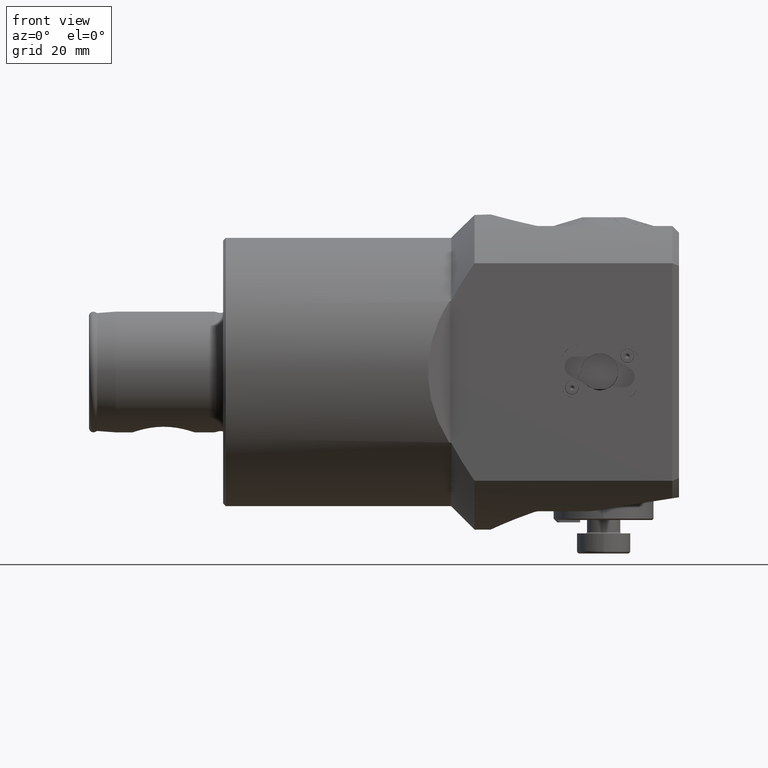
[diagram: clean part render]
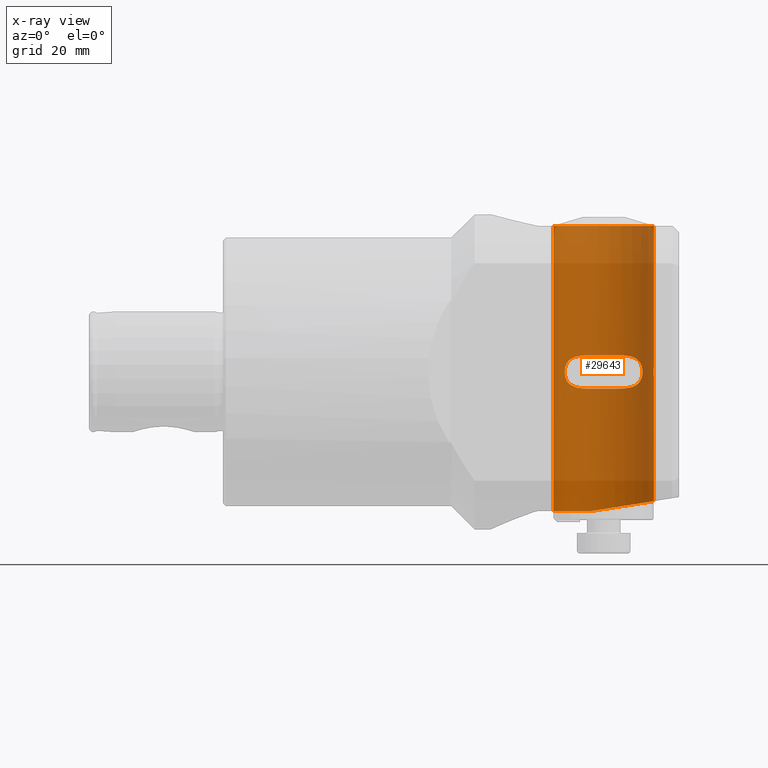
[diagram: x-ray — body ghosted, one internal face saturated and labeled with its STEP entity id]
A machine part, front view, then the same camera in x-ray: the body is ghosted and one INTERNAL B-rep face — a face not visible from any outside direction — is saturated and labeled: STEP entity #29643.
In plain terms, the highlighted cylindrical surface (partial cylindrical patch) has radius 15 mm, axis along (-0, 0, 1).
Its self-contained STEP definition (entity closure, byte-faithful):
#349 = CARTESIAN_POINT ( 'NONE',  ( -14.20858694209766800, 12.50240507956487300, 4.586087235399561200 ) ) ;
#426 = CARTESIAN_POINT ( 'NONE',  ( -7.568342937873500100, 1.431515160987078900, 0.8275730650745876100 ) ) ;
#461 = CARTESIAN_POINT ( 'NONE',  ( -7.499999999999971600, 10.78758098744011400, -38.54363547187132600 ) ) ;
#579 = CARTESIAN_POINT ( 'NONE',  ( -26.48143859313935900, 14.46195514890917100, -41.54999999999999000 ) ) ;
#601 = EDGE_CURVE ( 'NONE', #13997, #6951, #6536, .T. ) ;
#635 = CARTESIAN_POINT ( 'NONE',  ( -29.31928001201113800, 13.36253664295546700, 4.870143562531006300 ) ) ;
#754 = CARTESIAN_POINT ( 'NONE',  ( -34.03309213892777800, 9.591143784820163300, -0.9822619822595830600 ) ) ;
#879 = CARTESIAN_POINT ( 'NONE',  ( -33.16700874164254000, 10.54759067274875200, 3.069510118688215900 ) ) ;
#1105 = CARTESIAN_POINT ( 'NONE',  ( -33.86870272020120600, 9.785752174759604600, 1.683194300325357600 ) ) ;
#2072 = CARTESIAN_POINT ( 'NONE',  ( -16.79772104262010000, 13.88258092550121800, -4.964733818639690100 ) ) ;
#2203 = CARTESIAN_POINT ( 'NONE',  ( -11.01432286039371900, 9.648197494095718700, -1.231945338293130500 ) ) ;
#2250 = CARTESIAN_POINT ( 'NONE',  ( -23.79445612596623500, 14.95794725794611500, 4.979682208011131400 ) ) ;
#2477 = CARTESIAN_POINT ( 'NONE',  ( -18.65942712606566200, 14.50000000000000000, 4.999999999999992000 ) ) ;
#2518 = CARTESIAN_POINT ( 'NONE',  ( -7.500750018750931500, 0.1500000000000022100, 43.55999999998300600 ) ) ;
#2850 = EDGE_CURVE ( 'NONE', #27032, #28673, #23784, .T. ) ;
#2992 = VERTEX_POINT ( 'NONE', #15010 ) ;
#3170 = CARTESIAN_POINT ( 'NONE',  ( -7.591017118191937900, 1.649918009079039500, 0.1102789240595022800 ) ) ;
#3339 = DIRECTION ( 'NONE',  ( -1.415537577249354700E-016, 0.0000000000000000000, 1.000000000000000000 ) ) ;
#3378 = CARTESIAN_POINT ( 'NONE',  ( -31.74940754962025100, 11.81112796991802800, 4.218618333483589400 ) ) ;
#3506 = CARTESIAN_POINT ( 'NONE',  ( -33.61920456786271700, 10.06880340606725500, -2.327889085177186500 ) ) ;
#3577 = CARTESIAN_POINT ( 'NONE',  ( -16.79333560442295000, 13.88082934743036600, 4.964536755608256700 ) ) ;
#3732 = CARTESIAN_POINT ( 'NONE',  ( -32.27526345357423300, 11.37956811404553800, 3.910865448574979600 ) ) ;
#3855 = CARTESIAN_POINT ( 'NONE',  ( -34.09272503672042400, 9.518981204274240300, 0.5004452020388876500 ) ) ;
#4086 = B_SPLINE_CURVE_WITH_KNOTS ( 'NONE', 3,
 ( #14127, #33167, #14472, #635, #22526, #11527, #19873, #33521, #33052, #3378, #22631, #3732, #9130, #30777, #22294, #879, #6316, #8792, #8679, #6089, #1105, #14245, #28060, #3855, #33395, #25225, #6437, #754, #9017, #25337, #30434, #3506, #30661, #27713, #11750, #16955, #6204, #8907, #30552, #19990, #19644, #27823, #11641, #22740, #27597, #9248 ),
 .UNSPECIFIED., .F., .F.,
 ( 4, 2, 2, 2, 2, 2, 2, 2, 2, 2, 2, 2, 2, 2, 2, 2, 2, 2, 2, 2, 2, 2, 4 ),
 ( 0.03893468233875230200, 0.04186808110881643600, 0.04260143080133246800, 0.04333478049384849300, 0.04480147987888055000, 0.04553482957139658900, 0.04626817926391263400, 0.04700152895642867300, 0.04773487864894471200, 0.04846822834146075100, 0.04920157803397678900, 0.04993492772649283500, 0.05066827741900887400, 0.05140162711152492000, 0.05213497680404095800, 0.05286832649655699700, 0.05360167618907303600, 0.05433502588158907500, 0.05506837557410511300, 0.05653507495913719100, 0.05800177434416925500, 0.05946847372920131800, 0.06240187249926546600 ),
 .UNSPECIFIED. ) ;
#4161 = B_SPLINE_CURVE_WITH_KNOTS ( 'NONE', 3,
 ( #23569, #18035, #18262, #2072, #31752, #7520, #29150, #18374, #12952, #15558, #31863, #15683, #29031, #20970, #4807, #12839, #23700, #2203, #10227, #26419, #34610, #19590, #27548, #8857, #27774, #11355, #11592, #19707, #25181, #13857, #11132, #30055, #5803, #11243, #27314, #349, #32887, #30508, #27426, #32772, #3577, #30169, #24831, #30273 ),
 .UNSPECIFIED., .F., .F.,
 ( 4, 2, 2, 2, 2, 2, 2, 2, 2, 2, 2, 2, 2, 2, 2, 2, 2, 2, 2, 2, 2, 4 ),
 ( 0.007731890726419994400, 0.009199198718068091500, 0.01066650670971619000, 0.01213381470136428600, 0.01360112269301238400, 0.01506843068466048200, 0.01653573867630858000, 0.01726939267213262900, 0.01800304666795667800, 0.01873670066378072700, 0.01947035465960477600, 0.02020400865542882500, 0.02093766265125287400, 0.02240497064290096800, 0.02313862463872502100, 0.02387227863454906600, 0.02533958662619716800, 0.02607324062202122400, 0.02680689461784527600, 0.02827420260949338100, 0.02974151060114147900, 0.03120881859278957700 ),
 .UNSPECIFIED. ) ;
#4650 = ORIENTED_EDGE ( 'NONE', *, *, #13367, .F. ) ;
#4681 = EDGE_CURVE ( 'NONE', #19749, #33537, #4161, .T. ) ;
#4807 = CARTESIAN_POINT ( 'NONE',  ( -11.38076245410068700, 10.06874546026463500, -2.327459172282015500 ) ) ;
#4847 = CARTESIAN_POINT ( 'NONE',  ( -19.28281461935535600, 14.66511483425367900, 4.999999999999992900 ) ) ;
#5158 = ORIENTED_EDGE ( 'NONE', *, *, #33653, .F. ) ;
#5294 = ORIENTED_EDGE ( 'NONE', *, *, #26835, .T. ) ;
#5366 = VERTEX_POINT ( 'NONE', #9632 ) ;
#5758 = CARTESIAN_POINT ( 'NONE',  ( -26.34057287393430600, 14.50000000000000000, -4.999999999999997300 ) ) ;
#5803 = CARTESIAN_POINT ( 'NONE',  ( -13.06280391484586400, 11.66859687940237900, 4.134030652087147900 ) ) ;
#5873 = CARTESIAN_POINT ( 'NONE',  ( -7.557463370575717000, 1.313089364892108700, -1.004944209660270300 ) ) ;
#6001 = CARTESIAN_POINT ( 'NONE',  ( -7.589846849469069000, 1.639443497755620500, -0.2151542085331388800 ) ) ;
#6089 = CARTESIAN_POINT ( 'NONE',  ( -33.79433819891932700, 9.871950354955380600, 1.906706644849223400 ) ) ;
#6116 = CARTESIAN_POINT ( 'NONE',  ( -7.533516013045900000, 1.013736387247087500, 1.319508540210253100 ) ) ;
#6204 = CARTESIAN_POINT ( 'NONE',  ( -32.74796936621218200, 10.95549564766251100, -3.531772162636292600 ) ) ;
#6316 = CARTESIAN_POINT ( 'NONE',  ( -33.29292884397347800, 10.41823435493192000, 2.896132171257573600 ) ) ;
#6437 = CARTESIAN_POINT ( 'NONE',  ( -34.09356587083915700, 9.517955861665139800, -0.4908606184911210000 ) ) ;
#6536 = CIRCLE ( 'NONE', #19807, 14.99999999999999300 ) ;
#6903 = ORIENTED_EDGE ( 'NONE', *, *, #15231, .F. ) ;
#6951 = VERTEX_POINT ( 'NONE', #9763 ) ;
#7520 = CARTESIAN_POINT ( 'NONE',  ( -15.45644592364345700, 13.25256636643442200, -4.846947433392541500 ) ) ;
#7670 = AXIS2_PLACEMENT_3D ( 'NONE', #33954, #26015, #26136 ) ;
#8032 = CARTESIAN_POINT ( 'NONE',  ( -21.20149752162585000, 14.95774531543862200, 4.979713646169807700 ) ) ;
#8136 = CARTESIAN_POINT ( 'NONE',  ( -21.20186059284454000, 14.95779705569539600, -4.979709985462260800 ) ) ;
#8472 = CARTESIAN_POINT ( 'NONE',  ( -19.28229603392487600, 14.66497747803732600, -4.999999999999992000 ) ) ;
#8583 = CARTESIAN_POINT ( 'NONE',  ( -7.573356531990718600, 1.482246002600001100, 0.7328946870472052800 ) ) ;
#8679 = CARTESIAN_POINT ( 'NONE',  ( -33.61857590915705900, 10.06949596129736900, 2.329164594774175300 ) ) ;
#8792 = CARTESIAN_POINT ( 'NONE',  ( -33.51823337191572700, 10.17965880898575600, 2.526468746665340600 ) ) ;
#8857 = CARTESIAN_POINT ( 'NONE',  ( -10.96605902931101200, 9.590119569518419600, 0.9764858150665435300 ) ) ;
#8865 = ORIENTED_EDGE ( 'NONE', *, *, #17423, .T. ) ;
#8907 = CARTESIAN_POINT ( 'NONE',  ( -32.28372120874851000, 11.37777849039898600, -3.924211474300694400 ) ) ;
#8934 = CARTESIAN_POINT ( 'NONE',  ( -7.585310025194505800, 1.597643549123868300, -0.4261471643993354200 ) ) ;
#9017 = CARTESIAN_POINT ( 'NONE',  ( -33.98791574328993900, 9.645526030228113600, -1.221401706879977600 ) ) ;
#9130 = CARTESIAN_POINT ( 'NONE',  ( -32.43885320065781000, 11.23667746218575800, 3.793102625206166600 ) ) ;
#9215 = VERTEX_POINT ( 'NONE', #10907 ) ;
#9248 = CARTESIAN_POINT ( 'NONE',  ( -26.34057287393430600, 14.50000000000000000, -4.999999999999997300 ) ) ;
#9632 = CARTESIAN_POINT ( 'NONE',  ( -37.50000000000000000, 1.836970198721031600E-015, 43.55000000000000400 ) ) ;
#9763 = CARTESIAN_POINT ( 'NONE',  ( -7.500000000000001800, -6.150186443502208200E-032, 43.55999999998300600 ) ) ;
#10220 = VERTEX_POINT ( 'NONE', #29362 ) ;
#10227 = CARTESIAN_POINT ( 'NONE',  ( -10.96821680089337800, 9.592718065696335100, -0.9894014925586425100 ) ) ;
#10491 = CARTESIAN_POINT ( 'NONE',  ( -22.49999999999999300, 6.123031769121786500E-019, 43.55999999998302000 ) ) ;
#10907 = CARTESIAN_POINT ( 'NONE',  ( -26.34057287393431000, 14.50000000000000000, 4.999999999999992000 ) ) ;
#10960 = CARTESIAN_POINT ( 'NONE',  ( -23.15116706753560600, 14.99981823025503600, -4.974955454058156000 ) ) ;
#11132 = CARTESIAN_POINT ( 'NONE',  ( -12.25054972426882700, 10.95415293100341700, 3.530535399771182800 ) ) ;
#11243 = CARTESIAN_POINT ( 'NONE',  ( -13.61924868365786900, 12.09075935697174300, 4.384326948336793700 ) ) ;
#11314 = CARTESIAN_POINT ( 'NONE',  ( -7.591035164240342000, 1.650081068557285100, -0.1078116179449579900 ) ) ;
#11355 = CARTESIAN_POINT ( 'NONE',  ( -11.18946866772173400, 9.854229438513002000, 1.911121142285481000 ) ) ;
#11364 = CARTESIAN_POINT ( 'NONE',  ( -7.499999999999985800, 0.0000000000000000000, 47.39383699335063200 ) ) ;
#11527 = CARTESIAN_POINT ( 'NONE',  ( -29.96600022539038500, 13.01226300739828200, 4.775126638887759800 ) ) ;
#11592 = CARTESIAN_POINT ( 'NONE',  ( -11.36519106826516200, 10.05614595677951300, 2.334606979105421100 ) ) ;
#11641 = CARTESIAN_POINT ( 'NONE',  ( -29.54125682044286400, 13.25371966893422400, -4.847205655442581800 ) ) ;
#11750 = CARTESIAN_POINT ( 'NONE',  ( -33.16595934306463500, 10.54864329780672900, -3.070825687467344500 ) ) ;
#11901 = DIRECTION ( 'NONE',  ( -1.415537577249354700E-016, 0.0000000000000000000, 1.000000000000000000 ) ) ;
#12304 = ORIENTED_EDGE ( 'NONE', *, *, #601, .F. ) ;
#12529 = EDGE_CURVE ( 'NONE', #2992, #5366, #20177, .T. ) ;
#12839 = CARTESIAN_POINT ( 'NONE',  ( -11.20701822560921300, 9.873481725764939700, -1.910081582743001800 ) ) ;
#12952 = CARTESIAN_POINT ( 'NONE',  ( -13.80511068609094800, 12.23172459791245000, -4.467843346556417600 ) ) ;
#13027 = VECTOR ( 'NONE', #16501, 1000.000000000000000 ) ;
#13099 = DIRECTION ( 'NONE',  ( -9.925724861851712300E-016, -6.123031769111787700E-017, -1.000000000000000000 ) ) ;
#13129 = CARTESIAN_POINT ( 'NONE',  ( -7.499999999999973400, 0.0000000000000000000, -38.54363547187132600 ) ) ;
#13352 = CARTESIAN_POINT ( 'NONE',  ( -25.70915650766115200, 14.66724141851496000, 4.999999999999992900 ) ) ;
#13367 = EDGE_CURVE ( 'NONE', #5366, #29049, #18886, .T. ) ;
#13461 = DIRECTION ( 'NONE',  ( -1.000000000000000000, 0.0000000000000000000, 9.251858538542975800E-016 ) ) ;
#13694 = CARTESIAN_POINT ( 'NONE',  ( -23.79432755761151700, 14.95795659464451800, -4.979681138207401300 ) ) ;
#13857 = CARTESIAN_POINT ( 'NONE',  ( -12.10318054511843400, 10.81399494466730500, 3.384730831310356800 ) ) ;
#13997 = VERTEX_POINT ( 'NONE', #2518 ) ;
#14043 = CARTESIAN_POINT ( 'NONE',  ( -7.499999999999979600, 0.2154051109249634200, 1.650000000000007900 ) ) ;
#14127 = CARTESIAN_POINT ( 'NONE',  ( -26.34057287393431000, 14.50000000000000000, 4.999999999999992000 ) ) ;
#14245 = CARTESIAN_POINT ( 'NONE',  ( -33.98706200273318200, 9.646541023158846400, 1.225239393160204400 ) ) ;
#14389 = DIRECTION ( 'NONE',  ( -0.0000000000000000000, -0.0000000000000000000, -1.000000000000000000 ) ) ;
#14392 = ORIENTED_EDGE ( 'NONE', *, *, #12529, .F. ) ;
#14452 = EDGE_CURVE ( 'NONE', #33537, #9215, #22410, .T. ) ;
#14472 = CARTESIAN_POINT ( 'NONE',  ( -28.21975384925694600, 13.90121802464034700, 4.983512764956579100 ) ) ;
#14504 = DIRECTION ( 'NONE',  ( 1.000000000000000000, 0.0000000000000000000, 0.0000000000000000000 ) ) ;
#14521 = VECTOR ( 'NONE', #25783, 1000.000000000000000 ) ;
#14832 = CARTESIAN_POINT ( 'NONE',  ( -7.500750018750918200, 0.1500000000000023500, 43.55000000000000400 ) ) ;
#15010 = CARTESIAN_POINT ( 'NONE',  ( -37.49999999999998600, 1.836970198721030800E-015, -41.54999999999999000 ) ) ;
#15231 = EDGE_CURVE ( 'NONE', #9215, #10220, #4086, .T. ) ;
#15558 = CARTESIAN_POINT ( 'NONE',  ( -13.06423120378085800, 11.66972382040824000, -4.134759269452012600 ) ) ;
#15683 = CARTESIAN_POINT ( 'NONE',  ( -12.09401802927602000, 10.81180438587275100, -3.398332761160475000 ) ) ;
#16001 = VERTEX_POINT ( 'NONE', #33473 ) ;
#16115 = B_SPLINE_CURVE_WITH_KNOTS ( 'NONE', 3,
 ( #5758, #16524, #18994, #13694, #10960, #19106, #8136, #16298, #8472, #22065 ),
 .UNSPECIFIED., .F., .F.,
 ( 4, 2, 2, 2, 4 ),
 ( 0.0000000000000000000, 0.001932972681604998600, 0.003865945363209997200, 0.005798918044814995600, 0.007731890726419994400 ),
 .UNSPECIFIED. ) ;
#16298 = CARTESIAN_POINT ( 'NONE',  ( -19.91530141768488300, 14.78986788035505000, -4.992300701625895300 ) ) ;
#16319 = EDGE_CURVE ( 'NONE', #2992, #28673, #23816, .T. ) ;
#16501 = DIRECTION ( 'NONE',  ( -1.415537577249354700E-016, 0.0000000000000000000, 1.000000000000000000 ) ) ;
#16524 = CARTESIAN_POINT ( 'NONE',  ( -25.70879147227504200, 14.66733810437715500, -4.999999999999992900 ) ) ;
#16528 = CARTESIAN_POINT ( 'NONE',  ( -7.573458994462719800, 1.483273838673148300, -0.7308173663634559600 ) ) ;
#16643 = CARTESIAN_POINT ( 'NONE',  ( -7.557342198132778900, 1.311714943646196800, 1.006735685663354900 ) ) ;
#16955 = CARTESIAN_POINT ( 'NONE',  ( -32.89359231996694900, 10.81710695235073600, -3.388139458516091100 ) ) ;
#16987 = CARTESIAN_POINT ( 'NONE',  ( -7.499999999999978700, 8.469427910783955400E-016, -1.650000000000000600 ) ) ;
#17225 = CARTESIAN_POINT ( 'NONE',  ( -18.65942712606566200, 14.50000000000000000, -4.999999999999992000 ) ) ;
#17335 = CYLINDRICAL_SURFACE ( 'NONE', #7670, 15.00000000000000700 ) ;
#17423 = EDGE_CURVE ( 'NONE', #27032, #30471, #30533, .T. ) ;
#17623 = B_SPLINE_CURVE_WITH_KNOTS ( 'NONE', 3,
 ( #30345, #14043, #24677, #30128, #6116, #32847, #16643, #426, #8583, #22196, #27505, #19322, #3170, #11314, #6001, #8934, #25028, #16528, #22076, #5873, #30007, #24793, #33196, #22323, #30466, #16987 ),
 .UNSPECIFIED., .F., .F.,
 ( 4, 2, 2, 2, 2, 2, 2, 2, 2, 2, 2, 2, 4 ),
 ( 0.005162556272619518500, 0.005807723270249386100, 0.006452890267879253700, 0.006775473766694187900, 0.007098057265509121300, 0.007420640764324054600, 0.007743224263138988000, 0.008065807761953921300, 0.008388391260768856400, 0.008710974759583789800, 0.009033558258398723100, 0.009678725256028589800, 0.01032389225365845500 ),
 .UNSPECIFIED. ) ;
#17917 = LINE ( 'NONE', #26020, #14521 ) ;
#18035 = CARTESIAN_POINT ( 'NONE',  ( -18.18661106666224500, 14.37476658399274100, -4.999999999999992900 ) ) ;
#18262 = CARTESIAN_POINT ( 'NONE',  ( -17.71964675336133500, 14.22639312328388800, -4.995490714685916900 ) ) ;
#18374 = CARTESIAN_POINT ( 'NONE',  ( -14.20490268969146000, 12.50703559395935500, -4.593668425506346700 ) ) ;
#18496 = DIRECTION ( 'NONE',  ( 1.000000000000000000, 0.0000000000000000000, 0.0000000000000000000 ) ) ;
#18852 = CARTESIAN_POINT ( 'NONE',  ( -37.50000000000000000, 1.836970198721030800E-015, 47.39383699335063200 ) ) ;
#18867 = VECTOR ( 'NONE', #11901, 1000.000000000000000 ) ;
#18882 = CARTESIAN_POINT ( 'NONE',  ( -18.65942712606566200, 14.50000000000000000, 4.999999999999992000 ) ) ;
#18886 = CIRCLE ( 'NONE', #28276, 15.00000000000000700 ) ;
#18994 = CARTESIAN_POINT ( 'NONE',  ( -25.07313932388947500, 14.79171062904881900, -4.992179222513643200 ) ) ;
#19106 = CARTESIAN_POINT ( 'NONE',  ( -21.85723436803807500, 15.00018059334296100, -4.974919035240809300 ) ) ;
#19322 = CARTESIAN_POINT ( 'NONE',  ( -7.589812649307609700, 1.639134350549118000, 0.2174929763568319000 ) ) ;
#19590 = CARTESIAN_POINT ( 'NONE',  ( -10.89142303021989400, 9.499523205493563400, 0.2385109945167335500 ) ) ;
#19644 = CARTESIAN_POINT ( 'NONE',  ( -30.80017698396294900, 12.50370360433519900, -4.592266593465110300 ) ) ;
#19707 = CARTESIAN_POINT ( 'NONE',  ( -11.70678007310782400, 10.41796112357476100, 2.895948158624199300 ) ) ;
#19749 = VERTEX_POINT ( 'NONE', #17225 ) ;
#19807 = AXIS2_PLACEMENT_3D ( 'NONE', #10491, #13099, #13461 ) ;
#19873 = CARTESIAN_POINT ( 'NONE',  ( -30.17859639657427500, 12.88791253751499400, 4.734951650091406200 ) ) ;
#19990 = CARTESIAN_POINT ( 'NONE',  ( -31.19260091275604900, 12.23334856545921100, -4.468652474341874700 ) ) ;
#20177 = LINE ( 'NONE', #18852, #13027 ) ;
#20719 = ORIENTED_EDGE ( 'NONE', *, *, #24721, .F. ) ;
#20970 = CARTESIAN_POINT ( 'NONE',  ( -11.48230147732717100, 10.18026042448404700, -2.527641326793549600 ) ) ;
#21102 = EDGE_LOOP ( 'NONE', ( #14392, #32376, #26575, #8865, #5158, #34999, #12304, #5294, #4650 ) ) ;
#21372 = CARTESIAN_POINT ( 'NONE',  ( -25.07334831451039400, 14.79167608101785400, 4.992181451790893100 ) ) ;
#21553 = AXIS2_PLACEMENT_3D ( 'NONE', #25372, #14389, #14504 ) ;
#22065 = CARTESIAN_POINT ( 'NONE',  ( -18.65942712606566200, 14.50000000000000000, -4.999999999999992000 ) ) ;
#22076 = CARTESIAN_POINT ( 'NONE',  ( -7.568453393777093500, 1.432662049498164100, -0.8255882730818002700 ) ) ;
#22084 = VECTOR ( 'NONE', #3339, 1000.000000000000000 ) ;
#22196 = CARTESIAN_POINT ( 'NONE',  ( -7.581827329519526900, 1.565203695056101200, 0.5332215557424807600 ) ) ;
#22294 = CARTESIAN_POINT ( 'NONE',  ( -32.89398900136416900, 10.81673412512554000, 3.387769820081834900 ) ) ;
#22323 = CARTESIAN_POINT ( 'NONE',  ( -7.504991226716529500, 0.4349128140153827300, -1.606088341062938700 ) ) ;
#22410 = B_SPLINE_CURVE_WITH_KNOTS ( 'NONE', 3,
 ( #2477, #4847, #34648, #8032, #23744, #31903, #2250, #21372, #13352, #23865 ),
 .UNSPECIFIED., .F., .F.,
 ( 4, 2, 2, 2, 4 ),
 ( 0.03120881859278957700, 0.03314028452928025800, 0.03507175046577094100, 0.03700321640226161800, 0.03893468233875230200 ),
 .UNSPECIFIED. ) ;
#22526 = CARTESIAN_POINT ( 'NONE',  ( -29.53662099124125000, 13.24938160688483700, 4.842638682719698600 ) ) ;
#22631 = CARTESIAN_POINT ( 'NONE',  ( -31.93052076470895900, 11.66686008124633600, 4.123746101847609100 ) ) ;
#22740 = CARTESIAN_POINT ( 'NONE',  ( -28.22047106521269200, 13.90099785945499100, -4.983539480594753700 ) ) ;
#23569 = CARTESIAN_POINT ( 'NONE',  ( -18.65942712606566200, 14.50000000000000000, -4.999999999999992000 ) ) ;
#23700 = CARTESIAN_POINT ( 'NONE',  ( -11.13374802841483400, 9.788606149947275600, -1.691284973777793300 ) ) ;
#23744 = CARTESIAN_POINT ( 'NONE',  ( -21.85675166036069300, 15.00017014665728800, 4.974920085168664100 ) ) ;
#23784 =( BOUNDED_CURVE ( )  B_SPLINE_CURVE ( 3, ( #30729, #461, #27545, #579 ),
 .UNSPECIFIED., .F., .F. ) 
 B_SPLINE_CURVE_WITH_KNOTS ( ( 4, 4 ),
 ( 0.0000000000000000000, 1.839445430886531800 ),
 .UNSPECIFIED. ) 
 CURVE ( )  GEOMETRIC_REPRESENTATION_ITEM ( )  RATIONAL_B_SPLINE_CURVE ( ( 1.000000000000000000, 0.7373604942622804500, 0.7373604942622804500, 1.000000000000000000 ) ) 
 REPRESENTATION_ITEM ( '' )  );
#23816 = CIRCLE ( 'NONE', #21553, 15.00000000000000700 ) ;
#23865 = CARTESIAN_POINT ( 'NONE',  ( -26.34057287393431000, 14.50000000000000000, 4.999999999999992000 ) ) ;
#24542 = CARTESIAN_POINT ( 'NONE',  ( -7.499999999999978700, 8.469427910783955400E-016, -1.650000000000000600 ) ) ;
#24677 = CARTESIAN_POINT ( 'NONE',  ( -7.504922460097782600, 0.4326104195147728600, 1.606717126227522800 ) ) ;
#24721 = EDGE_CURVE ( 'NONE', #10220, #19749, #16115, .T. ) ;
#24793 = CARTESIAN_POINT ( 'NONE',  ( -7.533641729881963100, 1.015557953515672500, -1.318104810349817400 ) ) ;
#24831 = CARTESIAN_POINT ( 'NONE',  ( -18.18584825857635000, 14.37456454123117500, 4.999999999999992000 ) ) ;
#25028 = CARTESIAN_POINT ( 'NONE',  ( -7.581908511705555600, 1.565973823968617600, -0.5309626033118537400 ) ) ;
#25181 = CARTESIAN_POINT ( 'NONE',  ( -11.83171379794652000, 10.54627948386392500, 3.067756533469659300 ) ) ;
#25225 = CARTESIAN_POINT ( 'NONE',  ( -34.10829590535777800, 9.499866641362828500, -0.2444294125085642000 ) ) ;
#25337 = CARTESIAN_POINT ( 'NONE',  ( -33.86933082890782700, 9.785024119928554100, -1.681291795943403900 ) ) ;
#25369 = CARTESIAN_POINT ( 'NONE',  ( -7.499999999999985800, 0.0000000000000000000, 47.39383699335063200 ) ) ;
#25372 = CARTESIAN_POINT ( 'NONE',  ( -22.49999999999997900, 0.0000000000000000000, -41.54999999999999000 ) ) ;
#25783 = DIRECTION ( 'NONE',  ( -9.925724861851714300E-016, -6.123031769111788900E-017, -1.000000000000000000 ) ) ;
#26015 = DIRECTION ( 'NONE',  ( -1.415537577249354700E-016, 0.0000000000000000000, 1.000000000000000000 ) ) ;
#26020 = CARTESIAN_POINT ( 'NONE',  ( -7.500750018750931500, 0.1500000000000022100, 43.55999999998300600 ) ) ;
#26136 = DIRECTION ( 'NONE',  ( 1.000000000000000000, 0.0000000000000000000, 0.0000000000000000000 ) ) ;
#26233 = FACE_BOUND ( 'NONE', #33883, .T. ) ;
#26419 = CARTESIAN_POINT ( 'NONE',  ( -10.90759616140939800, 9.519371664252030700, -0.5036592869835498900 ) ) ;
#26575 = ORIENTED_EDGE ( 'NONE', *, *, #2850, .F. ) ;
#26835 = EDGE_CURVE ( 'NONE', #13997, #29049, #17917, .T. ) ;
#27032 = VERTEX_POINT ( 'NONE', #13129 ) ;
#27314 = CARTESIAN_POINT ( 'NONE',  ( -13.81264164904100500, 12.23059557635301400, 4.457845349355951100 ) ) ;
#27426 = CARTESIAN_POINT ( 'NONE',  ( -15.45428348218992600, 13.25137253040700700, 4.846621231642139100 ) ) ;
#27505 = CARTESIAN_POINT ( 'NONE',  ( -7.585244909184018200, 1.597037517679585200, 0.4284107620479005700 ) ) ;
#27545 = CARTESIAN_POINT ( 'NONE',  ( -16.08080443276708800, 17.32529456690988900, -39.90270137948932900 ) ) ;
#27548 = CARTESIAN_POINT ( 'NONE',  ( -10.90647662978287300, 9.518004178252264000, 0.4900694040034178600 ) ) ;
#27597 = CARTESIAN_POINT ( 'NONE',  ( -27.29933799473150600, 14.24605466790288900, -4.999999999999992000 ) ) ;
#27713 = CARTESIAN_POINT ( 'NONE',  ( -33.29263493972956000, 10.41854720349732600, -2.896628066587806600 ) ) ;
#27774 = CARTESIAN_POINT ( 'NONE',  ( -11.01046848633463200, 9.643606939720067200, 1.214223404766312700 ) ) ;
#27823 = CARTESIAN_POINT ( 'NONE',  ( -29.97454605310868600, 13.01409632245476900, -4.781861774022485400 ) ) ;
#28060 = CARTESIAN_POINT ( 'NONE',  ( -34.03192829534189900, 9.592544330646790100, 0.9888743585258961100 ) ) ;
#28276 = AXIS2_PLACEMENT_3D ( 'NONE', #31990, #31757, #18496 ) ;
#28673 = VERTEX_POINT ( 'NONE', #32010 ) ;
#29031 = CARTESIAN_POINT ( 'NONE',  ( -11.82320493945386800, 10.54113748237773300, -3.086080082457242700 ) ) ;
#29049 = VERTEX_POINT ( 'NONE', #14832 ) ;
#29150 = CARTESIAN_POINT ( 'NONE',  ( -15.02901646007764600, 13.01610478147219600, -4.782442023450909300 ) ) ;
#29362 = CARTESIAN_POINT ( 'NONE',  ( -26.34057287393430600, 14.50000000000000000, -4.999999999999997300 ) ) ;
#29643 = ADVANCED_FACE ( 'NONE', ( #32140, #26233 ), #17335, .F. ) ;
#30007 = CARTESIAN_POINT ( 'NONE',  ( -7.551439585742351700, 1.243523621773856300, -1.089822721406790400 ) ) ;
#30055 = CARTESIAN_POINT ( 'NONE',  ( -12.71974491907842600, 11.38092263896442100, 3.927111279155710100 ) ) ;
#30128 = CARTESIAN_POINT ( 'NONE',  ( -7.521649024456859700, 0.8297615658720958200, 1.442285492746517400 ) ) ;
#30169 = CARTESIAN_POINT ( 'NONE',  ( -17.71785449184011100, 14.22584008890220300, 4.995481341966530500 ) ) ;
#30273 = CARTESIAN_POINT ( 'NONE',  ( -18.65942712606566200, 14.50000000000000000, 4.999999999999992000 ) ) ;
#30345 = CARTESIAN_POINT ( 'NONE',  ( -7.499999999999978700, 1.585827356243169500E-023, 1.650000000000007900 ) ) ;
#30434 = CARTESIAN_POINT ( 'NONE',  ( -33.79511916806153200, 9.871058465600326000, -1.904592113308726500 ) ) ;
#30466 = CARTESIAN_POINT ( 'NONE',  ( -7.499999999999977800, 0.2181647496294006600, -1.649999999999997500 ) ) ;
#30471 = VERTEX_POINT ( 'NONE', #24542 ) ;
#30508 = CARTESIAN_POINT ( 'NONE',  ( -15.02771431965914000, 13.01533167904466600, 4.782182072620040400 ) ) ;
#30533 = LINE ( 'NONE', #11364, #22084 ) ;
#30552 = CARTESIAN_POINT ( 'NONE',  ( -31.93348660783032500, 11.67156622619072300, -4.136003632653457300 ) ) ;
#30661 = CARTESIAN_POINT ( 'NONE',  ( -33.51866758837468300, 10.17919738244004100, -2.525742628675920400 ) ) ;
#30729 = CARTESIAN_POINT ( 'NONE',  ( -7.499999999999973400, 0.0000000000000000000, -38.54363547187132600 ) ) ;
#30777 = CARTESIAN_POINT ( 'NONE',  ( -32.74821077357015000, 10.95526810597990100, 3.531540359484652400 ) ) ;
#30869 = ORIENTED_EDGE ( 'NONE', *, *, #14452, .F. ) ;
#31752 = CARTESIAN_POINT ( 'NONE',  ( -16.34021425171020100, 13.68573011784440900, -4.938213710567362500 ) ) ;
#31757 = DIRECTION ( 'NONE',  ( 0.0000000000000000000, 0.0000000000000000000, -1.000000000000000000 ) ) ;
#31863 = CARTESIAN_POINT ( 'NONE',  ( -12.72101316656773500, 11.38204688819054900, -3.928081062834859700 ) ) ;
#31903 = CARTESIAN_POINT ( 'NONE',  ( -23.15115936427691800, 14.99982881027085700, 4.974954390730128600 ) ) ;
#31908 = ORIENTED_EDGE ( 'NONE', *, *, #4681, .F. ) ;
#31990 = CARTESIAN_POINT ( 'NONE',  ( -22.49999999999999300, 0.0000000000000000000, 43.55000000000000400 ) ) ;
#32010 = CARTESIAN_POINT ( 'NONE',  ( -26.48143859313935900, 14.46195514890917100, -41.54999999999999000 ) ) ;
#32140 = FACE_OUTER_BOUND ( 'NONE', #21102, .T. ) ;
#32376 = ORIENTED_EDGE ( 'NONE', *, *, #16319, .T. ) ;
#32772 = CARTESIAN_POINT ( 'NONE',  ( -16.33580126702205200, 13.68370012713374900, 4.937860107210926100 ) ) ;
#32847 = CARTESIAN_POINT ( 'NONE',  ( -7.551314875420877600, 1.242030251174616200, 1.091525042221331800 ) ) ;
#32887 = CARTESIAN_POINT ( 'NONE',  ( -14.41052897253848300, 12.63403880383876800, 4.640750495787798100 ) ) ;
#33052 = CARTESIAN_POINT ( 'NONE',  ( -31.19247440915269100, 12.23347965254505000, 4.468778274385177200 ) ) ;
#33167 = CARTESIAN_POINT ( 'NONE',  ( -27.29953153700519400, 14.24600340492315500, 4.999999999999991100 ) ) ;
#33196 = CARTESIAN_POINT ( 'NONE',  ( -7.521760646052367600, 0.8317350073776426100, -1.441140448601591300 ) ) ;
#33273 = LINE ( 'NONE', #25369, #18867 ) ;
#33395 = CARTESIAN_POINT ( 'NONE',  ( -34.10807642248896300, 9.500134830605301100, 0.2498552175345975000 ) ) ;
#33473 = CARTESIAN_POINT ( 'NONE',  ( -7.499999999999978700, 1.585827356243169500E-023, 1.650000000000007900 ) ) ;
#33521 = CARTESIAN_POINT ( 'NONE',  ( -30.79917291135362600, 12.50440953311802200, 4.592601784403772300 ) ) ;
#33537 = VERTEX_POINT ( 'NONE', #18882 ) ;
#33653 = EDGE_CURVE ( 'NONE', #16001, #30471, #17623, .T. ) ;
#33746 = EDGE_CURVE ( 'NONE', #16001, #6951, #33273, .T. ) ;
#33883 = EDGE_LOOP ( 'NONE', ( #20719, #6903, #30869, #31908 ) ) ;
#33954 = CARTESIAN_POINT ( 'NONE',  ( -22.49999999999999300, 0.0000000000000000000, 47.39383699335063200 ) ) ;
#34610 = CARTESIAN_POINT ( 'NONE',  ( -10.89221913806098700, 9.500495979485608100, -0.2580992362699881000 ) ) ;
#34648 = CARTESIAN_POINT ( 'NONE',  ( -19.91586241089805400, 14.78994545387035600, 4.992295104001337700 ) ) ;
#34999 = ORIENTED_EDGE ( 'NONE', *, *, #33746, .T. ) ;